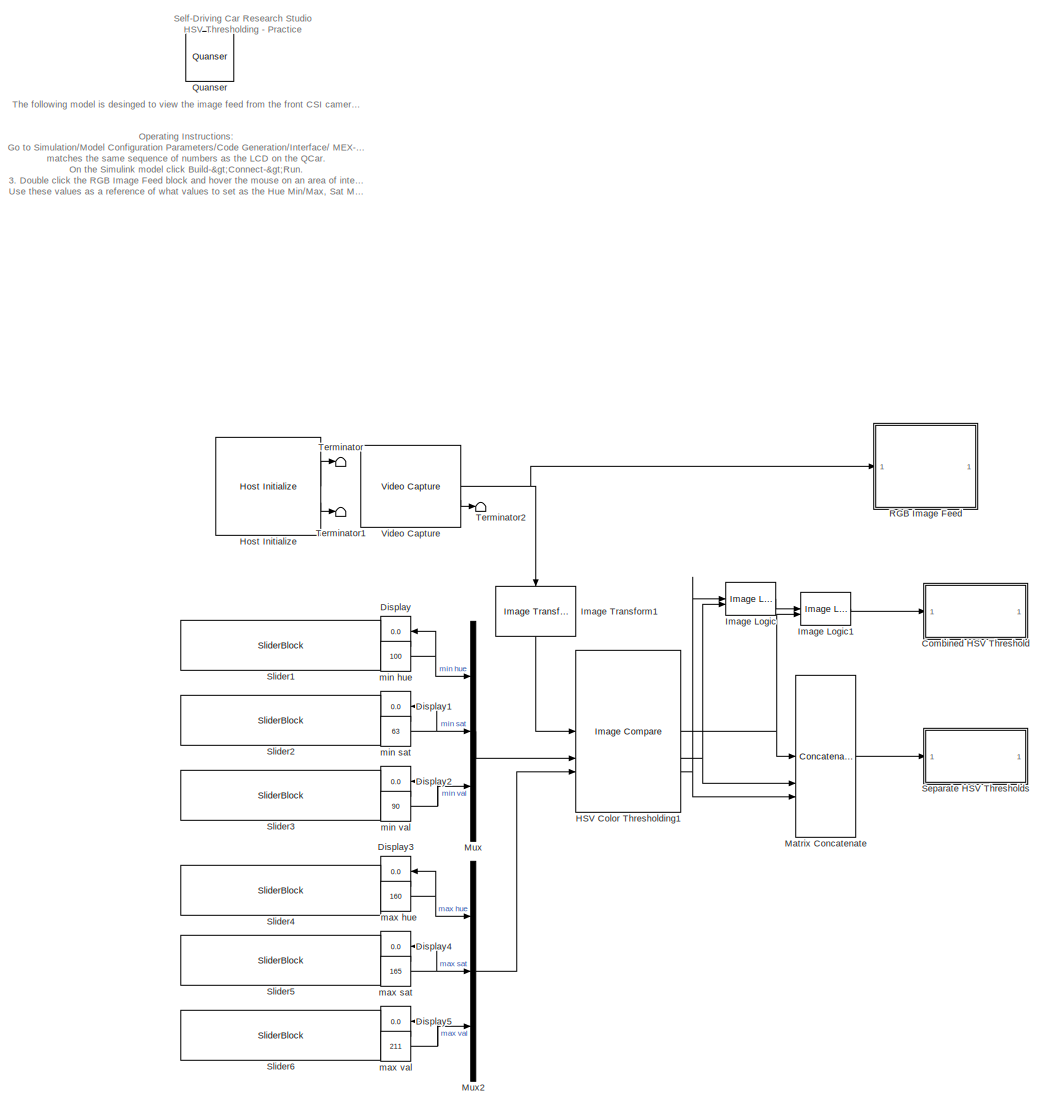
[diagram: root canvas - part 1/1, most of the canvas]
MODEL slx_7c47421d07fa
KIND model
CONFIG AbsTol = auto
CONFIG EnableMultiTasking = on
CONFIG FixedStep = 1/600
CONFIG MaxStep = auto
CONFIG MinStep = auto
CONFIG RelTol = 1e-3
CONFIG SampleTimeConstraint = Unconstrained
CONFIG SolverName = FixedStepDiscrete
CONFIG StartTime = 0.0
CONFIG StopTime = inf
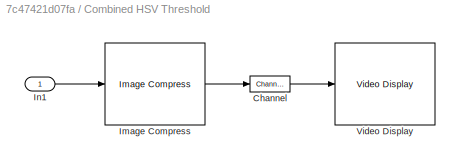
BLOCK [SubSystem] Combined HSV Threshold
  CopyFcn = set_param(gcbh, 'UserData', gcb);\nset_param(gcbh, 'LinkStatus', 'none');
  LoadFcn = set_param(gcbh, 'UserData', gcb);
  NameChangeFcn = video_display_show([get_param(gcbh, 'UserData'), '/Video Display'], 'rename', [gcb, '/Video Display']);\nvideo_display_show([gcb, '/Video Display'], 'add', gcb);\nset_param(gcbh, 'UserData', gcb);  <repeated x3 — deduplicated; at blocks: Combined HSV Threshold, RGB Image Feed, Separate HSV Thresholds>
  OpenFcn = video_display_show([gcb, '/Video Display'], 'show', gcb);
  PreDeleteFcn = video_display_show([gcb, '/Video Display'], 'delete');
  StartFcn = video_display_show([gcb, '/Video Display'], 'add', gcb);
  UndoDeleteFcn = set_param(gcbh, 'UserData', gcb);
BLOCK [Reference] Combined HSV Threshold/Channel  REF=quarc_library/Signal Routing/Channel
  SourceBlock = quarc_library/Signal Routing/Channel
  SourceProductName = QUARC Targets
  SourceType = Channel
BLOCK [Reference] Combined HSV Threshold/Image Compress  REF=quarc_library/Image Processing/Generic/Image Compress
  AttributesFormatString = (%<algorithm>)
  SourceBlock = quarc_library/Image Processing/Generic/Image Compress
  SourceProductName = QUARC Targets
  SourceType = Image Compress
BLOCK [Inport] Combined HSV Threshold/In1
BLOCK [Reference] Combined HSV Threshold/Video Display  REF=quarc_library/Multimedia/Video Display
  SourceBlock = quarc_library/Multimedia/Video Display
  SourceProductName = QUARC Targets
  SourceType = Video Display
  Tag = QCar2_HSV_selection/Combined HSV Threshold/Video Display
  UserDataPersistent = on
BLOCK [Display] Display
  Decimation = 1
  NameLocation = top
BLOCK [Display] Display1
  Decimation = 1
  NameLocation = top
BLOCK [Display] Display2
  Decimation = 1
  NameLocation = top
BLOCK [Display] Display3
  Decimation = 1
  NameLocation = top
BLOCK [Display] Display4
  Decimation = 1
  NameLocation = top
BLOCK [Display] Display5
  Decimation = 1
  NameLocation = top
BLOCK [Reference] HSV Color Thresholding1  REF=quarc_library/Image Processing/Generic/Image Compare
  SourceBlock = quarc_library/Image Processing/Generic/Image Compare
  SourceProductName = QUARC Targets
  SourceType = Image Compare
BLOCK [Reference] Host Initialize  REF=quarc_library/Devices/Peripherals/Host/Host Initialize
  SourceBlock = quarc_library/Devices/Peripherals/Host/Host Initialize
  SourceProductName = QUARC Targets
  SourceType = Host Initialize
BLOCK [Reference] Image Logic  REF=quarc_library/Image Processing/Generic/Image Logic
  AttributesFormatString = (%<algorithm>)
  SourceBlock = quarc_library/Image Processing/Generic/Image Logic
  SourceProductName = QUARC Targets
  SourceType = Image Logic
BLOCK [Reference] Image Logic1  REF=quarc_library/Image Processing/Generic/Image Logic
  AttributesFormatString = (%<algorithm>)
  SourceBlock = quarc_library/Image Processing/Generic/Image Logic
  SourceProductName = QUARC Targets
  SourceType = Image Logic
BLOCK [Reference] Image Transform1  REF=quarc_library/Image Processing/Generic/Image Transform
  AttributesFormatString = (%<algorithm>)
  NameLocation = right
  SourceBlock = quarc_library/Image Processing/Generic/Image Transform
  SourceProductName = QUARC Targets
  SourceType = Image Transform
BLOCK [Concatenate] Matrix Concatenate
  ConcatenateDimension = 2
  Mode = Multidimensional array
  NumInputs = 3
BLOCK [Mux] Mux
  DisplayOption = bar
  Inputs = 3
BLOCK [Mux] Mux2
  DisplayOption = bar
  Inputs = 3
BLOCK [Reference] Quanser  REF=quarc_library/Logos/Quanser
  SourceBlock = quarc_library/Logos/Quanser
  SourceProductName = QUARC Targets
  SourceType = Powered by Quanser
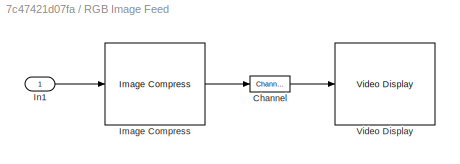
BLOCK [SubSystem] RGB Image Feed
  CopyFcn = set_param(gcbh, 'UserData', gcb);\nset_param(gcbh, 'LinkStatus', 'none');
  LoadFcn = set_param(gcbh, 'UserData', gcb);
  OpenFcn = video_display_show([gcb, '/Video Display'], 'show', gcb);
  PreDeleteFcn = video_display_show([gcb, '/Video Display'], 'delete');
  StartFcn = video_display_show([gcb, '/Video Display'], 'add', gcb);
  UndoDeleteFcn = set_param(gcbh, 'UserData', gcb);
BLOCK [Reference] RGB Image Feed/Channel  REF=quarc_library/Signal Routing/Channel
  SourceBlock = quarc_library/Signal Routing/Channel
  SourceProductName = QUARC Targets
  SourceType = Channel
BLOCK [Reference] RGB Image Feed/Image Compress  REF=quarc_library/Image Processing/Generic/Image Compress
  AttributesFormatString = (%<algorithm>)
  SourceBlock = quarc_library/Image Processing/Generic/Image Compress
  SourceProductName = QUARC Targets
  SourceType = Image Compress
BLOCK [Inport] RGB Image Feed/In1
BLOCK [Reference] RGB Image Feed/Video Display  REF=quarc_library/Multimedia/Video Display
  SourceBlock = quarc_library/Multimedia/Video Display
  SourceProductName = QUARC Targets
  SourceType = Video Display
  Tag = QCar2_HSV_selection/RGB Image Feed/Video Display
  UserDataPersistent = on
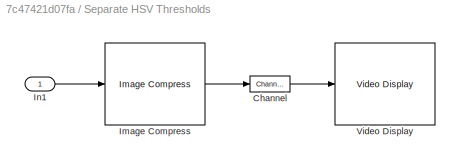
BLOCK [SubSystem] Separate HSV Thresholds
  CopyFcn = set_param(gcbh, 'UserData', gcb);\nset_param(gcbh, 'LinkStatus', 'none');
  LoadFcn = set_param(gcbh, 'UserData', gcb);
  OpenFcn = video_display_show([gcb, '/Video Display'], 'show', gcb);
  PreDeleteFcn = video_display_show([gcb, '/Video Display'], 'delete');
  StartFcn = video_display_show([gcb, '/Video Display'], 'add', gcb);
  UndoDeleteFcn = set_param(gcbh, 'UserData', gcb);
BLOCK [Reference] Separate HSV Thresholds/Channel  REF=quarc_library/Signal Routing/Channel
  SourceBlock = quarc_library/Signal Routing/Channel
  SourceProductName = QUARC Targets
  SourceType = Channel
BLOCK [Reference] Separate HSV Thresholds/Image Compress  REF=quarc_library/Image Processing/Generic/Image Compress
  AttributesFormatString = (%<algorithm>)
  SourceBlock = quarc_library/Image Processing/Generic/Image Compress
  SourceProductName = QUARC Targets
  SourceType = Image Compress
BLOCK [Inport] Separate HSV Thresholds/In1
BLOCK [Reference] Separate HSV Thresholds/Video Display  REF=quarc_library/Multimedia/Video Display
  SourceBlock = quarc_library/Multimedia/Video Display
  SourceProductName = QUARC Targets
  SourceType = Video Display
  Tag = QCar2_HSV_selection/Separate HSV Thresholds/Video Display
  UserDataPersistent = on
BLOCK [SliderBlock] Slider1
  ScaleMax = 255
BLOCK [SliderBlock] Slider2
  ScaleMax = 255
BLOCK [SliderBlock] Slider3
  ScaleMax = 255
BLOCK [SliderBlock] Slider4
  ScaleMax = 255
BLOCK [SliderBlock] Slider5
  ScaleMax = 255
BLOCK [SliderBlock] Slider6
  ScaleMax = 255
BLOCK [Terminator] Terminator
BLOCK [Terminator] Terminator1
BLOCK [Terminator] Terminator2
BLOCK [Reference] Video Capture  REF=quarc_library/Multimedia/Video Capture
  SourceBlock = quarc_library/Multimedia/Video Capture
  SourceProductName = QUARC Targets
  SourceType = Video Capture
BLOCK [Constant] max hue
  Value = 160
BLOCK [Constant] max sat
  Value = 165
BLOCK [Constant] max val
  Value = 211
BLOCK [Constant] min hue
  Value = 100
BLOCK [Constant] min sat
  Value = 63
BLOCK [Constant] min val
  Value = 90
ANNOTATION (root): Operating Instructions: Go to Simulation/Model Configuration Parameters/Code Generation/Interface/ MEX-file Arguments and ensure the IP address (by default 192.168.2.xxx) matches the same sequence of numbers as the LCD on the QCar. On the Simulink model click Build->Connect->Run. 3. Double click the RGB Image Feed block and hover the mouse on an area of interest and make note of the HSV values whi...<+607ch>
ANNOTATION (root): The following model is desinged to view the image feed from the front CSI camera on the QCar for HSV image tresholding.
ANNOTATION (root): Self-Driving Car Research Studio HSV Thresholding - Practice
NET HSV Color Thresholding1:1 -> Image Logic1:2, Matrix Concatenate:1
NET HSV Color Thresholding1:2 -> Image Logic:2, Matrix Concatenate:2
NET HSV Color Thresholding1:3 -> Image Logic:1, Matrix Concatenate:3
LINE Host Initialize:1 -> Terminator:1
LINE Host Initialize:2 -> Terminator1:1
LINE Image Logic1:1 -> Combined HSV Threshold:1
LINE Image Logic:1 -> Image Logic1:1
LINE Image Transform1:1 -> HSV Color Thresholding1:1
LINE Matrix Concatenate:1 -> Separate HSV Thresholds:1
LINE Mux2:1 -> HSV Color Thresholding1:3
LINE Mux:1 -> HSV Color Thresholding1:2
NET Video Capture:1 -> Image Transform1:1, RGB Image Feed:1
LINE Video Capture:2 -> Terminator2:1
NET max hue:1 -> Display3:1, Mux2:1
NET max sat:1 -> Display4:1, Mux2:2
NET max val:1 -> Display5:1, Mux2:3
NET min hue:1 -> Display:1, Mux:1
NET min sat:1 -> Display1:1, Mux:2
NET min val:1 -> Display2:1, Mux:3
note: NET lines group one-source signal fan-out (src -> all destinations, sorted); 1:1 wires keep LINE
